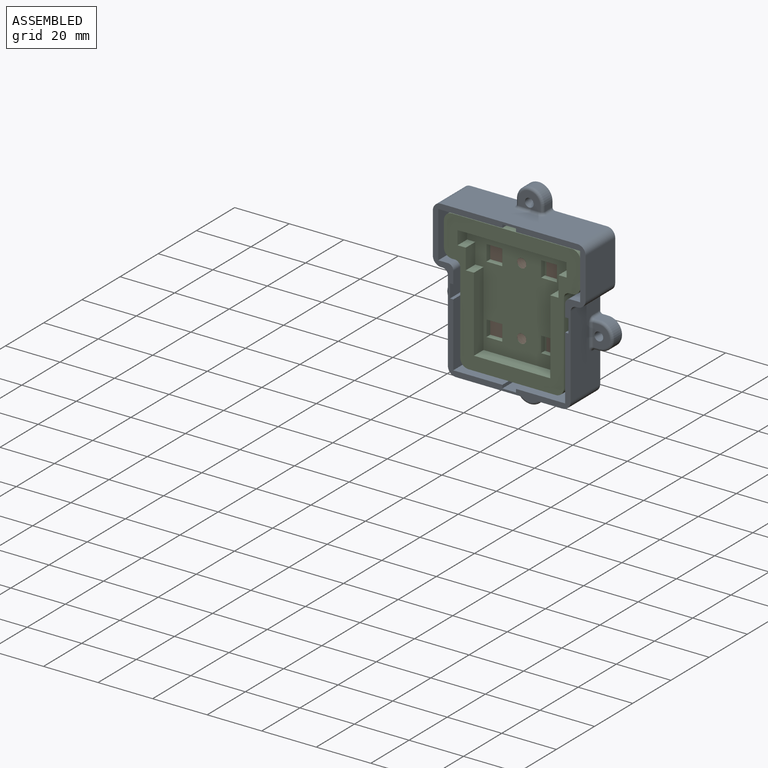
[diagram: assembled view]
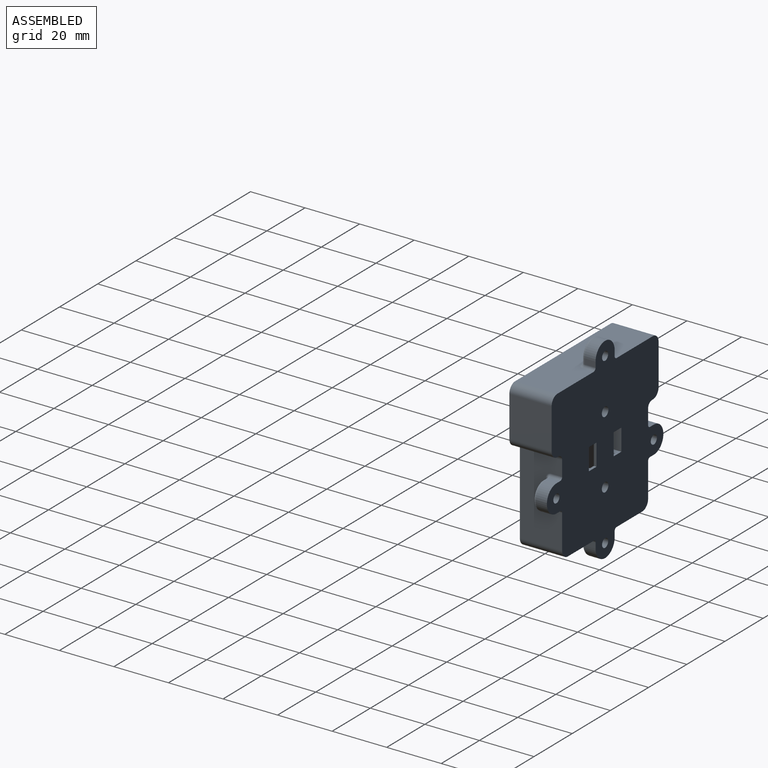
[diagram: assembled view, second angle]
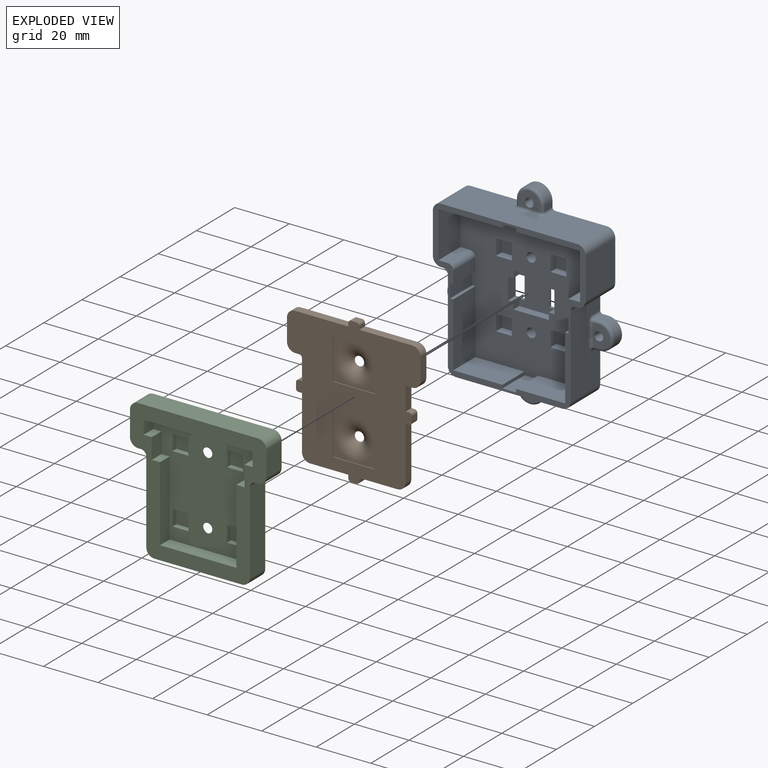
[diagram: exploded view]
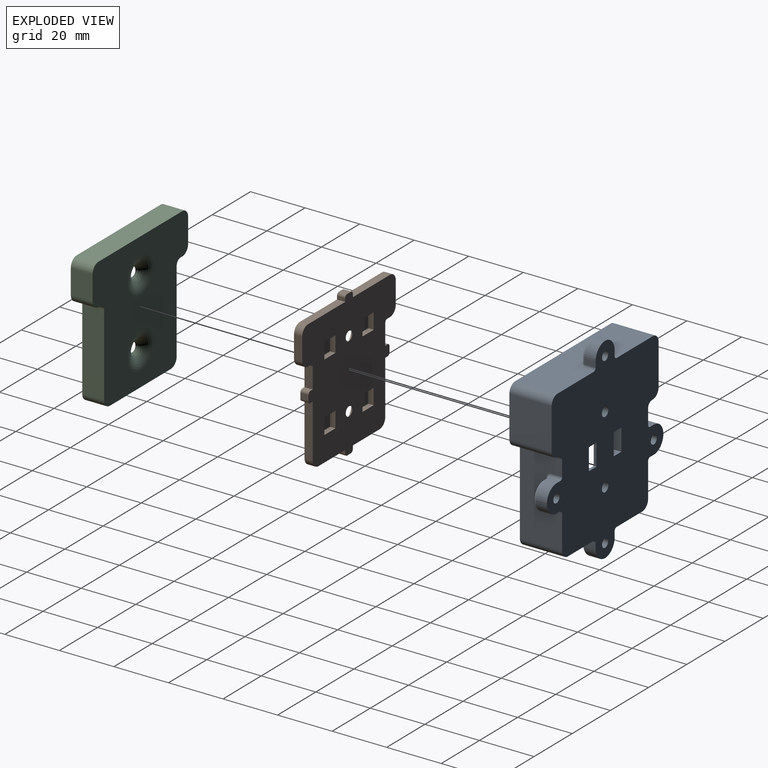
[diagram: exploded view, second angle]
ASSEMBLY  parts=3 mates=2
PART A: 134 faces, bbox 61.8x15.5x72.8 mm
  f0: plane 54.4x52mm, normal (0,-1,0), area 1991mm2, adj f2,f3,f4,f5,f7,f8,f19,f20
  f1: plane 30x15.5mm, normal (-1,0,0), area 394.7mm2, adj f6,f11,f56,f58,f98,f100,f102,f104
  f2: plane 23.5x11.5mm, normal (0,0,-1), area 270.2mm2, adj f0,f6,f32,f49
  f3: plane 11.5x4.5mm, normal (-1,0,0), area 51.8mm2, adj f0,f6,f42,f60
  f4: plane 18x11.5mm, normal (0,0,1), area 207mm2, adj f0,f6,f36,f43
  f5: plane 23.5x11.5mm, normal (1,0,0), area 270.2mm2, adj f0,f6,f37,f46
  f6: plane 56x56mm, normal (0,-1,0), area 396.4mm2, adj f1,f2,f3,f4,f5,f12,f13,f14
  f7: plane 4x4mm, normal (0,0,1), area 10mm2, adj f0,f9,f11,f21,f29,f31
  f8: plane 4x4mm, normal (0,0,-1), area 10mm2, adj f0,f9,f11,f21,f30,f31
  f9: plane 8x1mm, normal (1,0,0), area 8mm2, adj f7,f8,f11,f31
  f10: plane 8x1mm, normal (-1,0,0), area 8mm2, adj f11,f22,f24,f31
  f11: plane 72x61mm, normal (0,1,0), area 2905.6mm2, adj f1,f7,f8,f9,f10,f12,f13,f14
  f12: plane 15.5x15mm, normal (1,0,0), area 232.5mm2, adj f6,f11,f54,f55
  f13: plane 50x15.5mm, normal (0,0,1), area 704.7mm2, adj f6,f11,f52,f55,f106,f108,f110,f112
  f14: plane 15.5x15mm, normal (-1,0,0), area 232.5mm2, adj f6,f11,f52,f53
  f15: plane 15.5x0.5mm, normal (0,0,-1), area 7.8mm2, adj f6,f11,f53,f58
  f16: plane 39x15.5mm, normal (0,0,-1), area 534.2mm2, adj f6,f11,f56,f57,f83,f85,f87,f88
  f17: plane 30x15.5mm, normal (1,0,0), area 394.7mm2, adj f6,f11,f57,f59,f91,f93,f95,f96
  f18: plane 15.5x0.5mm, normal (0,0,-1), area 7.8mm2, adj f6,f11,f54,f59
  f19: cylinder r=1.7mm len=4mm, axis (0,1,0), area 42.7mm2, adj f0,f11
  f20: cylinder r=1.7mm len=4mm, axis (0,1,0), area 42.7mm2, adj f0,f11
  f21: plane 8x4mm, normal (-1,0,0), area 32mm2, adj f0,f7,f8,f11
  f22: plane 4x4mm, normal (0,0,-1), area 10mm2, adj f0,f10,f11,f23,f26,f31
  f23: plane 8x4mm, normal (1,0,0), area 32mm2, adj f0,f11,f22,f24
  f24: plane 4x4mm, normal (0,0,1), area 10mm2, adj f0,f10,f11,f23,f27,f31
  f25: plane 13x3mm, normal (0,0,-1), area 39mm2, adj f0,f26,f30,f31
  f26: plane 3x2.5mm, normal (1,0,0), area 7.5mm2, adj f0,f22,f25,f31
  f27: plane 3x2.5mm, normal (1,0,0), area 7.5mm2, adj f0,f24,f28,f31
  f28: plane 13x3mm, normal (0,0,1), area 39mm2, adj f0,f27,f29,f31
  f29: plane 3x2.5mm, normal (-1,0,0), area 7.5mm2, adj f0,f7,f28,f31
  f30: plane 3x2.5mm, normal (-1,0,0), area 7.5mm2, adj f0,f8,f25,f31
  f31: plane 13x13mm, normal (0,-1,0), area 137mm2, adj f7,f8,f9,f10,f22,f24,f25,f26
  f32: plane 17x11.5mm, normal (1,0,0), area 195.5mm2, adj f0,f2,f6,f39
  f33: plane 23.5x11.5mm, normal (0,0,-1), area 270.2mm2, adj f0,f6,f34,f50
  f34: plane 17x11.5mm, normal (-1,0,0), area 195.5mm2, adj f0,f6,f33,f35
  f35: plane 11.5x3.5mm, normal (0,0,1), area 40.2mm2, adj f0,f6,f34,f60
  f36: plane 23.5x11.5mm, normal (-1,0,0), area 270.2mm2, adj f0,f4,f6,f40
  f37: plane 18x11.5mm, normal (0,0,1), area 207mm2, adj f0,f5,f6,f44
  f38: plane 11.5x4.5mm, normal (1,0,0), area 51.8mm2, adj f0,f6,f47,f61
  f39: plane 11.5x3.5mm, normal (0,0,1), area 40.3mm2, adj f0,f6,f32,f61
  f40: plane 11.5x1.2mm, normal (0,0,1), area 13.8mm2, adj f0,f6,f36,f41
  f41: plane 11.5x5mm, normal (-1,0,0), area 57.5mm2, adj f0,f6,f40,f42
  f42: plane 11.5x1.2mm, normal (0,0,-1), area 13.8mm2, adj f0,f3,f6,f41
  f43: plane 11.5x1.2mm, normal (-1,0,0), area 13.8mm2, adj f0,f4,f6,f45
  f44: plane 11.5x1.2mm, normal (1,0,0), area 13.8mm2, adj f0,f6,f37,f45
  f45: plane 11.5x5mm, normal (0,0,1), area 57.5mm2, adj f0,f6,f43,f44
  f46: plane 11.5x1.2mm, normal (0,0,1), area 13.8mm2, adj f0,f5,f6,f48
  f47: plane 11.5x1.2mm, normal (0,0,-1), area 13.8mm2, adj f0,f6,f38,f48
  f48: plane 11.5x5mm, normal (1,0,0), area 57.5mm2, adj f0,f6,f46,f47
  f49: plane 11.5x1.2mm, normal (1,0,0), area 13.8mm2, adj f0,f2,f6,f51
  f50: plane 11.5x1.2mm, normal (-1,0,0), area 13.8mm2, adj f0,f6,f33,f51
  f51: plane 11.5x5mm, normal (0,0,-1), area 57.5mm2, adj f0,f6,f49,f50
  f52: cylinder r=3mm len=15.5mm, axis (0,-1,0), area 73mm2, adj f6,f11,f13,f14
  f53: cylinder r=3mm len=15.5mm, axis (0,1,0), area 73mm2, adj f6,f11,f14,f15
  f54: cylinder r=3mm len=15.5mm, axis (0,1,0), area 73mm2, adj f6,f11,f12,f18
  f55: cylinder r=3mm len=15.5mm, axis (0,1,0), area 73mm2, adj f6,f11,f12,f13
  f56: cylinder r=3mm len=15.5mm, axis (0,1,0), area 73mm2, adj f1,f6,f11,f16
  f57: cylinder r=3mm len=15.5mm, axis (0,-1,0), area 73mm2, adj f6,f11,f16,f17
  f58: cylinder r=2mm len=15.5mm, axis (0,-1,0), area 48.7mm2, adj f1,f6,f11,f15
  f59: cylinder r=2mm len=15.5mm, axis (0,-1,0), area 48.7mm2, adj f6,f11,f17,f18
  f60: cylinder r=2mm len=11.5mm, axis (0,1,0), area 36.1mm2, adj f0,f3,f6,f35
  f61: cylinder r=2mm len=11.5mm, axis (0,1,0), area 36.1mm2, adj f0,f6,f38,f39
  f62: plane 4x2mm, normal (1,0,0), area 8mm2, adj f11,f63,f111,f113
  f63: cylinder r=5mm len=10mm, axis (0,1,0), area 62.8mm2, adj f11,f62,f64,f109
  f64: plane 4x2mm, normal (-1,0,0), area 8mm2, adj f11,f63,f106,f107
  f65: cylinder r=1.6mm len=5mm, axis (0,1,0), area 50.3mm2, adj f11,f66
  f66: plane 8x6mm, normal (0,-1,0), area 33.1mm2, adj f65,f107,f109,f110,f111
  f67: plane 4x2mm, normal (-1,0,0), area 8mm2, adj f11,f68,f82,f83
  f68: cylinder r=5mm len=10mm, axis (0,1,0), area 62.8mm2, adj f11,f67,f69,f84
  f69: plane 4x2mm, normal (1,0,0), area 8mm2, adj f11,f68,f86,f89
  f70: cylinder r=1.6mm len=5mm, axis (0,1,0), area 50.3mm2, adj f11,f71
  f71: plane 8x6mm, normal (0,-1,0), area 33.1mm2, adj f70,f82,f84,f86,f87
  f72: cylinder r=5mm len=10mm, axis (0,1,0), area 62.8mm2, adj f11,f73,f74,f92
  f73: plane 4x2mm, normal (0,0,1), area 8mm2, adj f11,f72,f94,f97
  f74: plane 4x2mm, normal (0,0,-1), area 8mm2, adj f11,f72,f90,f91
  f75: cylinder r=1.6mm len=5mm, axis (0,1,0), area 50.3mm2, adj f11,f76
  f76: plane 8x6mm, normal (0,-1,0), area 33.1mm2, adj f75,f90,f92,f94,f95
  f77: cylinder r=5mm len=10mm, axis (0,1,0), area 62.8mm2, adj f11,f78,f79,f101
  f78: plane 4x2mm, normal (0,0,-1), area 8mm2, adj f11,f77,f98,f99
  f79: plane 4x2mm, normal (0,0,1), area 8mm2, adj f11,f77,f103,f105
  f80: cylinder r=1.6mm len=5mm, axis (0,1,0), area 50.3mm2, adj f11,f81
  f81: plane 8x6mm, normal (0,-1,0), area 33.1mm2, adj f80,f99,f101,f102,f103
  f82: cylinder r=1mm len=2mm, axis (0,0,1), area 3.1mm2, adj f67,f71,f84,f85
  f83: cylinder r=1mm len=4mm, axis (0,1,0), area 6.3mm2, adj f11,f16,f67,f85
  f84: torus R=4mm, axis (0,-1,0), area 22.9mm2, adj f68,f71,f82,f86
  f85: torus R=2mm, axis (0,0,1), area 3.4mm2, adj f16,f82,f83,f87
  f86: cylinder r=1mm len=2mm, axis (0,0,-1), area 3.1mm2, adj f69,f71,f84,f88
  f87: cylinder r=1mm len=8mm, axis (1,0,0), area 12.6mm2, adj f16,f71,f85,f88
  f88: torus R=2mm, axis (0,0,1), area 3.4mm2, adj f16,f86,f87,f89
  f89: cylinder r=1mm len=4mm, axis (0,-1,0), area 6.3mm2, adj f11,f16,f69,f88
  f90: cylinder r=1mm len=2mm, axis (-1,0,0), area 3.1mm2, adj f74,f76,f92,f93
  f91: cylinder r=1mm len=4mm, axis (0,-1,0), area 6.3mm2, adj f11,f17,f74,f93
  f92: torus R=4mm, axis (0,-1,0), area 22.9mm2, adj f72,f76,f90,f94
  f93: torus R=2mm, axis (1,0,0), area 3.4mm2, adj f17,f90,f91,f95
  f94: cylinder r=1mm len=2mm, axis (1,0,0), area 3.1mm2, adj f73,f76,f92,f96
  f95: cylinder r=1mm len=8mm, axis (0,0,1), area 12.6mm2, adj f17,f76,f93,f96
  f96: torus R=2mm, axis (1,0,0), area 3.4mm2, adj f17,f94,f95,f97
  f97: cylinder r=1mm len=4mm, axis (0,1,0), area 6.3mm2, adj f11,f17,f73,f96
  f98: cylinder r=1mm len=4mm, axis (0,-1,0), area 6.3mm2, adj f1,f11,f78,f100
  f99: cylinder r=1mm len=2mm, axis (-1,0,0), area 3.1mm2, adj f78,f81,f100,f101
  f100: torus R=2mm, axis (1,0,0), area 3.4mm2, adj f1,f98,f99,f102
  f101: torus R=4mm, axis (0,-1,0), area 22.9mm2, adj f77,f81,f99,f103
  f102: cylinder r=1mm len=8mm, axis (0,0,-1), area 12.6mm2, adj f1,f81,f100,f104
  f103: cylinder r=1mm len=2mm, axis (1,0,0), area 3.1mm2, adj f79,f81,f101,f104
  f104: torus R=2mm, axis (1,0,0), area 3.4mm2, adj f1,f102,f103,f105
  f105: cylinder r=1mm len=4mm, axis (0,1,0), area 6.3mm2, adj f1,f11,f79,f104
  f106: cylinder r=1mm len=4mm, axis (0,1,0), area 6.3mm2, adj f11,f13,f64,f108
  f107: cylinder r=1mm len=2mm, axis (0,0,1), area 3.1mm2, adj f64,f66,f108,f109
  f108: torus R=2mm, axis (0,0,1), area 3.4mm2, adj f13,f106,f107,f110
  f109: torus R=4mm, axis (0,-1,0), area 22.9mm2, adj f63,f66,f107,f111
  f110: cylinder r=1mm len=8mm, axis (-1,0,0), area 12.6mm2, adj f13,f66,f108,f112
  f111: cylinder r=1mm len=2mm, axis (0,0,-1), area 3.1mm2, adj f62,f66,f109,f112
  f112: torus R=2mm, axis (0,0,1), area 3.4mm2, adj f13,f110,f111,f113
  f113: cylinder r=1mm len=4mm, axis (0,-1,0), area 6.3mm2, adj f11,f13,f62,f112
  f114: plane 5.8x3mm, normal (0,0,1), area 17.4mm2, adj f0,f115,f117,f118
  f115: plane 5.8x3mm, normal (-1,0,0), area 17.4mm2, adj f0,f114,f116,f118
  f116: plane 5.8x3mm, normal (0,0,-1), area 17.4mm2, adj f0,f115,f117,f118
  f117: plane 5.8x3mm, normal (1,0,0), area 17.4mm2, adj f0,f114,f116,f118
  f118: plane 5.8x5.8mm, normal (0,-1,0), area 33.6mm2, adj f114,f115,f116,f117
  f119: plane 5.8x3mm, normal (1,0,0), area 17.4mm2, adj f0,f120,f122,f123
  f120: plane 5.8x3mm, normal (0,0,1), area 17.4mm2, adj f0,f119,f121,f123
  f121: plane 5.8x3mm, normal (-1,0,0), area 17.4mm2, adj f0,f120,f122,f123
  f122: plane 5.8x3mm, normal (0,0,-1), area 17.4mm2, adj f0,f119,f121,f123
  f123: plane 5.8x5.8mm, normal (0,-1,0), area 33.6mm2, adj f119,f120,f121,f122
  f124: plane 5.8x3mm, normal (0,0,1), area 17.4mm2, adj f0,f125,f127,f128
  f125: plane 5.8x3mm, normal (-1,0,0), area 17.4mm2, adj f0,f124,f126,f128
  f126: plane 5.8x3mm, normal (0,0,-1), area 17.4mm2, adj f0,f125,f127,f128
  f127: plane 5.8x3mm, normal (1,0,0), area 17.4mm2, adj f0,f124,f126,f128
  f128: plane 5.8x5.8mm, normal (0,-1,0), area 33.6mm2, adj f124,f125,f126,f127
  f129: plane 5.8x3mm, normal (0,0,-1), area 17.4mm2, adj f0,f130,f132,f133
  f130: plane 5.8x3mm, normal (1,0,0), area 17.4mm2, adj f0,f129,f131,f133
  f131: plane 5.8x3mm, normal (0,0,1), area 17.4mm2, adj f0,f130,f132,f133
  f132: plane 5.8x3mm, normal (-1,0,0), area 17.4mm2, adj f0,f129,f131,f133
  f133: plane 5.8x5.8mm, normal (0,-1,0), area 33.6mm2, adj f129,f130,f131,f132
PART B: 74 faces, bbox 49x7.3x53.5 mm
  f0: plane 53.5x49mm, normal (0,-1,0), area 1567.8mm2, adj f2,f3,f4,f5,f6,f7,f8,f9
  f1: plane 53.5x49mm, normal (0,1,0), area 1889.4mm2, adj f2,f3,f4,f5,f6,f7,f8,f9
  f2: plane 3x1.2mm, normal (-1,0,0), area 3.6mm2, adj f0,f1,f3,f67
  f3: plane 19.5x3mm, normal (0,0,1), area 58.5mm2, adj f0,f1,f2,f26
  f4: plane 8x3mm, normal (-1,0,0), area 24mm2, adj f0,f1,f26,f27
  f5: plane 3x1.5mm, normal (0,0,-1), area 4.5mm2, adj f0,f1,f27,f32
  f6: plane 7.55x3mm, normal (-1,0,0), area 22.7mm2, adj f0,f1,f7,f32
  f7: plane 3x1.2mm, normal (0,0,1), area 3.6mm2, adj f0,f1,f6,f70
  f8: plane 3x2mm, normal (-1,0,0), area 6mm2, adj f0,f1,f70,f71
  f9: plane 3x1.2mm, normal (0,0,-1), area 3.6mm2, adj f0,f1,f10,f71
  f10: plane 19.55x3mm, normal (-1,0,0), area 58.6mm2, adj f0,f1,f9,f28
  f11: plane 14x3mm, normal (0,0,-1), area 42mm2, adj f0,f1,f12,f28
  f12: plane 3x1.2mm, normal (-1,0,0), area 3.6mm2, adj f0,f1,f11,f72
  f13: plane 3x2mm, normal (0,0,-1), area 6mm2, adj f0,f1,f72,f73
  f14: plane 3x1.2mm, normal (1,0,0), area 3.6mm2, adj f0,f1,f15,f73
  f15: plane 14x3mm, normal (0,0,-1), area 42mm2, adj f0,f1,f14,f31
  f16: plane 19.55x3mm, normal (1,0,0), area 58.6mm2, adj f0,f1,f17,f31
  f17: plane 3x1.2mm, normal (0,0,-1), area 3.6mm2, adj f0,f1,f16,f69
  f18: plane 3x2mm, normal (1,0,0), area 6mm2, adj f0,f1,f68,f69
  f19: plane 3x1.2mm, normal (0,0,1), area 3.6mm2, adj f0,f1,f20,f68
  f20: plane 7.55x3mm, normal (1,0,0), area 22.7mm2, adj f0,f1,f19,f33
  f21: plane 3x1.5mm, normal (0,0,-1), area 4.5mm2, adj f0,f1,f29,f33
  f22: plane 8x3mm, normal (1,0,0), area 24mm2, adj f0,f1,f29,f30
  f23: plane 19.5x3mm, normal (0,0,1), area 58.5mm2, adj f0,f1,f24,f30
  f24: plane 3x1.2mm, normal (1,0,0), area 3.6mm2, adj f0,f1,f23,f66
  f25: plane 3x2mm, normal (0,0,1), area 6mm2, adj f0,f1,f66,f67
  f26: cylinder r=3mm len=3mm, axis (0,-1,0), area 14.1mm2, adj f0,f1,f3,f4
  f27: cylinder r=3mm len=3mm, axis (0,1,0), area 14.1mm2, adj f0,f1,f4,f5
  f28: cylinder r=3mm len=3mm, axis (0,1,0), area 14.1mm2, adj f0,f1,f10,f11
  f29: cylinder r=3mm len=3mm, axis (0,1,0), area 14.1mm2, adj f0,f1,f21,f22
  f30: cylinder r=3mm len=3mm, axis (0,1,0), area 14.1mm2, adj f0,f1,f22,f23
  f31: cylinder r=3mm len=3mm, axis (0,-1,0), area 14.1mm2, adj f0,f1,f15,f16
  f32: cylinder r=1mm len=3mm, axis (0,-1,0), area 4.7mm2, adj f0,f1,f5,f6
  f33: cylinder r=1mm len=3mm, axis (0,-1,0), area 4.7mm2, adj f0,f1,f20,f21
  f34: plane 5.8x2mm, normal (0,0,1), area 11.6mm2, adj f1,f35,f37,f38
  f35: plane 5.8x2mm, normal (1,0,0), area 11.6mm2, adj f1,f34,f36,f38
  f36: plane 5.8x2mm, normal (0,0,-1), area 11.6mm2, adj f1,f35,f37,f38
  f37: plane 5.8x2mm, normal (-1,0,0), area 11.6mm2, adj f1,f34,f36,f38
  f38: plane 5.8x5.8mm, normal (0,1,0), area 33.6mm2, adj f34,f35,f36,f37
  f39: plane 5.8x2mm, normal (0,0,1), area 11.6mm2, adj f1,f40,f42,f43
  f40: plane 5.8x2mm, normal (1,0,0), area 11.6mm2, adj f1,f39,f41,f43
  f41: plane 5.8x2mm, normal (0,0,-1), area 11.6mm2, adj f1,f40,f42,f43
  f42: plane 5.8x2mm, normal (-1,0,0), area 11.6mm2, adj f1,f39,f41,f43
  f43: plane 5.8x5.8mm, normal (0,1,0), area 33.6mm2, adj f39,f40,f41,f42
  f44: plane 5.8x2mm, normal (0,0,1), area 11.6mm2, adj f1,f45,f47,f48
  f45: plane 5.8x2mm, normal (1,0,0), area 11.6mm2, adj f1,f44,f46,f48
  f46: plane 5.8x2mm, normal (0,0,-1), area 11.6mm2, adj f1,f45,f47,f48
  f47: plane 5.8x2mm, normal (-1,0,0), area 11.6mm2, adj f1,f44,f46,f48
  f48: plane 5.8x5.8mm, normal (0,1,0), area 33.6mm2, adj f44,f45,f46,f47
  f49: plane 5.8x2mm, normal (0,0,1), area 11.6mm2, adj f1,f50,f52,f53
  f50: plane 5.8x2mm, normal (1,0,0), area 11.6mm2, adj f1,f49,f51,f53
  f51: plane 5.8x2mm, normal (0,0,-1), area 11.6mm2, adj f1,f50,f52,f53
  f52: plane 5.8x2mm, normal (-1,0,0), area 11.6mm2, adj f1,f49,f51,f53
  f53: plane 5.8x5.8mm, normal (0,1,0), area 33.6mm2, adj f49,f50,f51,f52
  f54: plane 15.4x0.3mm, normal (0,0,-1), area 4.6mm2, adj f0,f55,f57,f58
  f55: plane 15.4x0.3mm, normal (1,0,0), area 4.6mm2, adj f0,f54,f56,f58
  f56: plane 15.4x0.3mm, normal (0,0,1), area 4.6mm2, adj f0,f55,f57,f58
  f57: plane 15.4x0.3mm, normal (-1,0,0), area 4.6mm2, adj f0,f54,f56,f58
  f58: plane 15.4x15.4mm, normal (0,-1,0), area 73.2mm2, adj f54,f55,f56,f57,f64
  f59: plane 15.4x0.3mm, normal (0,0,-1), area 4.6mm2, adj f0,f60,f62,f63
  f60: plane 15.4x0.3mm, normal (1,0,0), area 4.6mm2, adj f0,f59,f61,f63
  f61: plane 15.4x0.3mm, normal (0,0,1), area 4.6mm2, adj f0,f60,f62,f63
  f62: plane 15.4x0.3mm, normal (-1,0,0), area 4.6mm2, adj f0,f59,f61,f63
  f63: plane 15.4x15.4mm, normal (0,-1,0), area 73.2mm2, adj f59,f60,f61,f62,f65
  f64: torus R=7.22mm, axis (0,-1,0), area 170.1mm2, adj f1,f58
  f65: torus R=7.22mm, axis (0,-1,0), area 170.1mm2, adj f1,f63
  f66: cylinder r=1mm len=3mm, axis (0,1,0), area 4.7mm2, adj f0,f1,f24,f25
  f67: cylinder r=1mm len=3mm, axis (0,-1,0), area 4.7mm2, adj f0,f1,f2,f25
  f68: cylinder r=1mm len=3mm, axis (0,-1,0), area 4.7mm2, adj f0,f1,f18,f19
  f69: cylinder r=1mm len=3mm, axis (0,1,0), area 4.7mm2, adj f0,f1,f17,f18
  f70: cylinder r=1mm len=3mm, axis (0,-1,0), area 4.7mm2, adj f0,f1,f7,f8
  f71: cylinder r=1mm len=3mm, axis (0,1,0), area 4.7mm2, adj f0,f1,f8,f9
  f72: cylinder r=1mm len=3mm, axis (0,-1,0), area 4.7mm2, adj f0,f1,f12,f13
  f73: cylinder r=1mm len=3mm, axis (0,1,0), area 4.7mm2, adj f0,f1,f13,f14
PART C: 53 faces, bbox 50x8x50 mm
  f0: plane 40x40mm, normal (0,-1,0), area 1072.3mm2, adj f10,f11,f12,f13,f14,f15,f16,f17
  f1: plane 32x8mm, normal (0,0,-1), area 256mm2, adj f9,f22,f25,f26
  f2: plane 30x8mm, normal (1,0,0), area 240mm2, adj f9,f22,f26,f30
  f3: plane 8x1mm, normal (0,0,-1), area 8mm2, adj f9,f22,f27,f30
  f4: plane 9x8mm, normal (1,0,0), area 72mm2, adj f9,f22,f27,f28
  f5: plane 44x8mm, normal (0,0,1), area 352mm2, adj f9,f22,f23,f28
  f6: plane 9x8mm, normal (-1,0,0), area 72mm2, adj f9,f22,f23,f24
  f7: plane 8x1mm, normal (0,0,-1), area 8mm2, adj f9,f22,f24,f29
  f8: plane 30x8mm, normal (-1,0,0), area 240mm2, adj f9,f22,f25,f29
  f9: plane 50x50mm, normal (0,1,0), area 1771.3mm2, adj f1,f2,f3,f4,f5,f6,f7,f8
  f10: plane 5x3mm, normal (0,0,1), area 15mm2, adj f0,f11,f21,f22
  f11: plane 7.5x5mm, normal (-1,0,0), area 37.5mm2, adj f0,f10,f12,f22
  f12: plane 5x3mm, normal (0,0,1), area 15mm2, adj f0,f11,f13,f22
  f13: plane 27.5x5mm, normal (-1,0,0), area 137.5mm2, adj f0,f12,f14,f22
  f14: plane 28x5mm, normal (0,0,1), area 140mm2, adj f0,f13,f15,f22
  f15: plane 27.5x5mm, normal (1,0,0), area 137.5mm2, adj f0,f14,f16,f22
  f16: plane 5x3mm, normal (0,0,1), area 15mm2, adj f0,f15,f17,f22
  f17: plane 7.5x5mm, normal (1,0,0), area 37.5mm2, adj f0,f16,f18,f22
  f18: plane 5x3mm, normal (0,0,1), area 15mm2, adj f0,f17,f19,f22
  f19: plane 5x5mm, normal (1,0,0), area 25mm2, adj f0,f18,f20,f22
  f20: plane 40x5mm, normal (0,0,-1), area 200mm2, adj f0,f19,f21,f22
  f21: plane 5x5mm, normal (-1,0,0), area 25mm2, adj f0,f10,f20,f22
  f22: plane 50x50mm, normal (0,-1,0), area 845.1mm2, adj f1,f2,f3,f4,f5,f6,f7,f8
  f23: cylinder r=3mm len=8mm, axis (0,-1,0), area 37.7mm2, adj f5,f6,f9,f22
  f24: cylinder r=3mm len=8mm, axis (0,1,0), area 37.7mm2, adj f6,f7,f9,f22
  f25: cylinder r=3mm len=8mm, axis (0,1,0), area 37.7mm2, adj f1,f8,f9,f22
  f26: cylinder r=3mm len=8mm, axis (0,-1,0), area 37.7mm2, adj f1,f2,f9,f22
  f27: cylinder r=3mm len=8mm, axis (0,1,0), area 37.7mm2, adj f3,f4,f9,f22
  f28: cylinder r=3mm len=8mm, axis (0,1,0), area 37.7mm2, adj f4,f5,f9,f22
  f29: cylinder r=2mm len=8mm, axis (0,-1,0), area 25.1mm2, adj f7,f8,f9,f22
  f30: cylinder r=2mm len=8mm, axis (0,-1,0), area 25.1mm2, adj f2,f3,f9,f22
  f31: plane 5.8x2mm, normal (1,0,0), area 11.6mm2, adj f0,f32,f34,f35
  f32: plane 5.8x2mm, normal (0,0,1), area 11.6mm2, adj f0,f31,f33,f35
  f33: plane 5.8x2mm, normal (-1,0,0), area 11.6mm2, adj f0,f32,f34,f35
  f34: plane 5.8x2mm, normal (0,0,-1), area 11.6mm2, adj f0,f31,f33,f35
  f35: plane 5.8x5.8mm, normal (0,-1,0), area 33.6mm2, adj f31,f32,f33,f34
  f36: plane 5.8x2mm, normal (1,0,0), area 11.6mm2, adj f0,f37,f39,f40
  f37: plane 5.8x2mm, normal (0,0,1), area 11.6mm2, adj f0,f36,f38,f40
  f38: plane 5.8x2mm, normal (-1,0,0), area 11.6mm2, adj f0,f37,f39,f40
  f39: plane 5.8x2mm, normal (0,0,-1), area 11.6mm2, adj f0,f36,f38,f40
  f40: plane 5.8x5.8mm, normal (0,-1,0), area 33.6mm2, adj f36,f37,f38,f39
  f41: plane 5.8x2mm, normal (0,0,1), area 11.6mm2, adj f0,f42,f44,f45
  f42: plane 5.8x2mm, normal (-1,0,0), area 11.6mm2, adj f0,f41,f43,f45
  f43: plane 5.8x2mm, normal (0,0,-1), area 11.6mm2, adj f0,f42,f44,f45
  f44: plane 5.8x2mm, normal (1,0,0), area 11.6mm2, adj f0,f41,f43,f45
  f45: plane 5.8x5.8mm, normal (0,-1,0), area 33.6mm2, adj f41,f42,f43,f44
  f46: plane 5.8x2mm, normal (1,0,0), area 11.6mm2, adj f0,f47,f49,f50
  f47: plane 5.8x2mm, normal (0,0,1), area 11.6mm2, adj f0,f46,f48,f50
  f48: plane 5.8x2mm, normal (-1,0,0), area 11.6mm2, adj f0,f47,f49,f50
  f49: plane 5.8x2mm, normal (0,0,-1), area 11.6mm2, adj f0,f46,f48,f50
  f50: plane 5.8x5.8mm, normal (0,-1,0), area 33.6mm2, adj f46,f47,f48,f49
  f51: torus R=6.9mm, axis (0,-1,0), area 159.2mm2, adj f0,f9
  f52: torus R=6.9mm, axis (0,-1,0), area 159.2mm2, adj f0,f9
PLACE A t=(-74.38,-1.64,59.47)mm
PLACE B t=(-30.38,-5.64,50)mm
PLACE C t=(-19.07,-7.63,29.64)mm
MATE fastened B.f65 <-> A.f19  axis (0,1,0) through (-65.29,-5.64,73.87)mm
MATE fastened C.f52 <-> B.f65  axis (0,-1,0) through (-65.29,-7.63,73.87)mm
